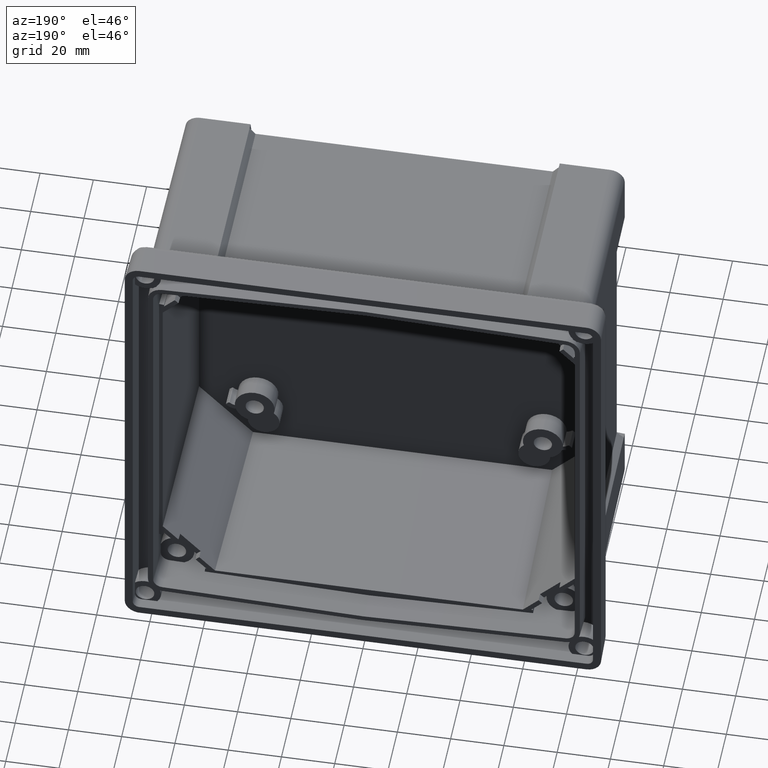
[diagram: clean part render]
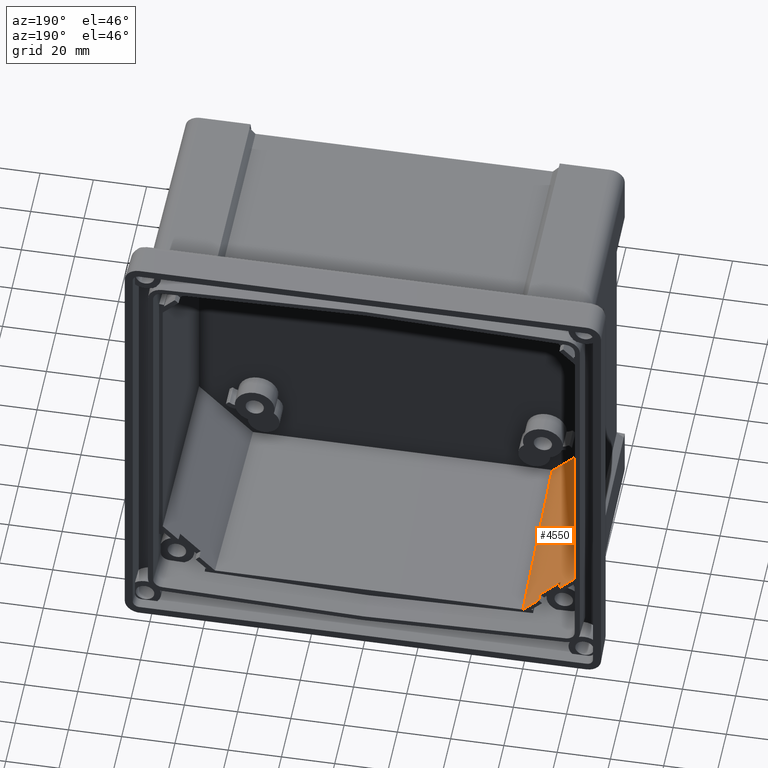
[diagram: same view with one face highlighted and labeled with its STEP entity id]
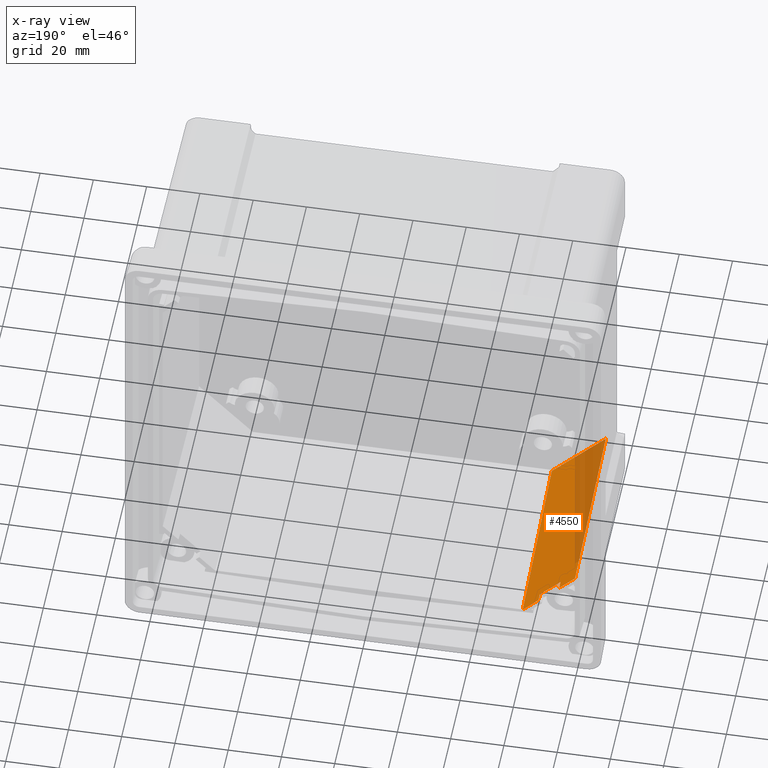
[diagram: x-ray of the same camera — body ghosted, the highlighted face saturated]
A machine part, auxiliary view. The second image highlights one B-rep face of the part: STEP entity #4550.
The next image is the same camera in x-ray: the body ghosted, the highlighted face saturated — about 29% of this face is hidden behind the body in this view.
In plain terms, the highlighted planar face has unit normal (0.715, 0.0262, 0.6986).
Its self-contained STEP definition (entity closure, byte-faithful):
#191 = LINE ( 'NONE', #12368, #12525 ) ;
#233 = CARTESIAN_POINT ( 'NONE',  ( -56.21359819429579100, -81.99964039479610300, -75.96166971993730500 ) ) ;
#312 = ORIENTED_EDGE ( 'NONE', *, *, #4650, .T. ) ;
#337 = VERTEX_POINT ( 'NONE', #6723 ) ;
#502 = CARTESIAN_POINT ( 'NONE',  ( -78.22367773359111700, -15.88434796355235600, -55.91183946519364400 ) ) ;
#1230 = EDGE_LOOP ( 'NONE', ( #9357, #9717, #312, #7910, #9203, #5712, #4013, #5880 ) ) ;
#1299 = CARTESIAN_POINT ( 'NONE',  ( -76.94787429523754000, -83.99999999999998600, -54.66532101059937100 ) ) ;
#1618 = LINE ( 'NONE', #233, #2573 ) ;
#1927 = VERTEX_POINT ( 'NONE', #10859 ) ;
#2366 = VECTOR ( 'NONE', #13493, 1000.000000000000000 ) ;
#2573 = VECTOR ( 'NONE', #12415, 1000.000000000000100 ) ;
#2683 = LINE ( 'NONE', #1299, #2366 ) ;
#2720 = EDGE_CURVE ( 'NONE', #11647, #12297, #1618, .T. ) ;
#2767 = DIRECTION ( 'NONE',  ( 0.01395843206272826000, -0.9996340909313550200, 0.02316994652979807700 ) ) ;
#2832 = EDGE_CURVE ( 'NONE', #4455, #337, #10459, .T. ) ;
#2856 = VECTOR ( 'NONE', #12684, 1000.000000000000100 ) ;
#2980 = VECTOR ( 'NONE', #4672, 1000.000000000000100 ) ;
#3046 = VERTEX_POINT ( 'NONE', #8323 ) ;
#3150 = VECTOR ( 'NONE', #7663, 1000.000000000000100 ) ;
#3268 = DIRECTION ( 'NONE',  ( 0.6988499389361073600, 0.0000000000000000000, -0.7152683152838514900 ) ) ;
#3522 = EDGE_CURVE ( 'NONE', #6725, #1927, #6504, .T. ) ;
#3719 = DIRECTION ( 'NONE',  ( -0.005882867360077059300, -0.9990380624683243800, 0.04345505276903974300 ) ) ;
#3777 = CARTESIAN_POINT ( 'NONE',  ( -57.80096274610206600, -12.88434796355236300, -76.92676397057276500 ) ) ;
#3917 = EDGE_CURVE ( 'NONE', #4455, #1927, #11620, .T. ) ;
#4013 = ORIENTED_EDGE ( 'NONE', *, *, #3522, .T. ) ;
#4173 = CARTESIAN_POINT ( 'NONE',  ( -76.44191852265089400, -81.93966256054528700, -55.26036430171687600 ) ) ;
#4455 = VERTEX_POINT ( 'NONE', #5630 ) ;
#4512 = CARTESIAN_POINT ( 'NONE',  ( -56.16765611959033300, -83.99999999999998600, -75.93373761567677600 ) ) ;
#4550 = ADVANCED_FACE ( 'NONE', ( #11094 ), #7442, .T. ) ;
#4650 = EDGE_CURVE ( 'NONE', #3046, #10204, #5546, .T. ) ;
#4655 = DIRECTION ( 'NONE',  ( 0.7150232106964286000, 0.02617694830787321200, 0.6986104605162006800 ) ) ;
#4672 = DIRECTION ( 'NONE',  ( 0.6988499389361072500, -0.0000000000000000000, -0.7152683152838513700 ) ) ;
#5122 = CARTESIAN_POINT ( 'NONE',  ( -64.11825801440596700, -84.64565422470005300, -67.77215620040296100 ) ) ;
#5241 = VECTOR ( 'NONE', #2767, 1000.000000000000100 ) ;
#5546 = LINE ( 'NONE', #4173, #5241 ) ;
#5630 = CARTESIAN_POINT ( 'NONE',  ( -71.39403806018947300, -15.88434796355235600, -62.90193074376834700 ) ) ;
#5712 = ORIENTED_EDGE ( 'NONE', *, *, #11375, .F. ) ;
#5880 = ORIENTED_EDGE ( 'NONE', *, *, #3917, .F. ) ;
#6055 = CARTESIAN_POINT ( 'NONE',  ( -76.94787429523754000, -83.99999999999998600, -54.66532101059937100 ) ) ;
#6079 = CARTESIAN_POINT ( 'NONE',  ( -56.32046992845745600, -12.88434796355235600, -78.44203863036399600 ) ) ;
#6504 = LINE ( 'NONE', #5122, #13094 ) ;
#6723 = CARTESIAN_POINT ( 'NONE',  ( -71.52280859944805500, -12.88434796355235400, -62.88254500555573400 ) ) ;
#6725 = VERTEX_POINT ( 'NONE', #7262 ) ;
#7262 = CARTESIAN_POINT ( 'NONE',  ( -63.69568928336366300, -12.88434796355235400, -70.89355013673484500 ) ) ;
#7386 = CARTESIAN_POINT ( 'NONE',  ( -76.41314891541578900, -83.99999999999998600, -55.21260891928386600 ) ) ;
#7442 = PLANE ( 'NONE',  #11455 ) ;
#7463 = LINE ( 'NONE', #6079, #2980 ) ;
#7663 = DIRECTION ( 'NONE',  ( -0.04288313223641032600, 0.9990592370735579300, 0.006455833609601770300 ) ) ;
#7910 = ORIENTED_EDGE ( 'NONE', *, *, #12195, .T. ) ;
#8323 = CARTESIAN_POINT ( 'NONE',  ( -77.40617527031182000, -12.88434796355235600, -56.86095792024781300 ) ) ;
#9069 = CARTESIAN_POINT ( 'NONE',  ( -68.48826710181076300, -83.58083293074618300, -63.33937952226449400 ) ) ;
#9203 = ORIENTED_EDGE ( 'NONE', *, *, #2720, .T. ) ;
#9357 = ORIENTED_EDGE ( 'NONE', *, *, #2832, .T. ) ;
#9717 = ORIENTED_EDGE ( 'NONE', *, *, #10254, .F. ) ;
#10204 = VERTEX_POINT ( 'NONE', #7386 ) ;
#10254 = EDGE_CURVE ( 'NONE', #3046, #337, #7463, .T. ) ;
#10459 = LINE ( 'NONE', #9069, #3150 ) ;
#10859 = CARTESIAN_POINT ( 'NONE',  ( -63.71335487864301700, -15.88434796355235600, -70.76305945454299700 ) ) ;
#10970 = DIRECTION ( 'NONE',  ( 0.6988499389361072500, -0.0000000000000000000, -0.7152683152838513700 ) ) ;
#11094 = FACE_OUTER_BOUND ( 'NONE', #1230, .T. ) ;
#11375 = EDGE_CURVE ( 'NONE', #6725, #12297, #191, .T. ) ;
#11455 = AXIS2_PLACEMENT_3D ( 'NONE', #6055, #4655, #3268 ) ;
#11620 = LINE ( 'NONE', #502, #2856 ) ;
#11647 = VERTEX_POINT ( 'NONE', #4512 ) ;
#12195 = EDGE_CURVE ( 'NONE', #10204, #11647, #2683, .T. ) ;
#12297 = VERTEX_POINT ( 'NONE', #3777 ) ;
#12368 = CARTESIAN_POINT ( 'NONE',  ( -56.32046992845745600, -12.88434796355235600, -78.44203863036399600 ) ) ;
#12415 = DIRECTION ( 'NONE',  ( -0.02295861600695002500, 0.9996389659397153500, -0.01395850013510898200 ) ) ;
#12525 = VECTOR ( 'NONE', #10970, 1000.000000000000100 ) ;
#12684 = DIRECTION ( 'NONE',  ( 0.6988499389361072500, -0.0000000000000000000, -0.7152683152838513700 ) ) ;
#13094 = VECTOR ( 'NONE', #3719, 1000.000000000000200 ) ;
#13493 = DIRECTION ( 'NONE',  ( 0.6988499389361073600, 0.0000000000000000000, -0.7152683152838513700 ) ) ;